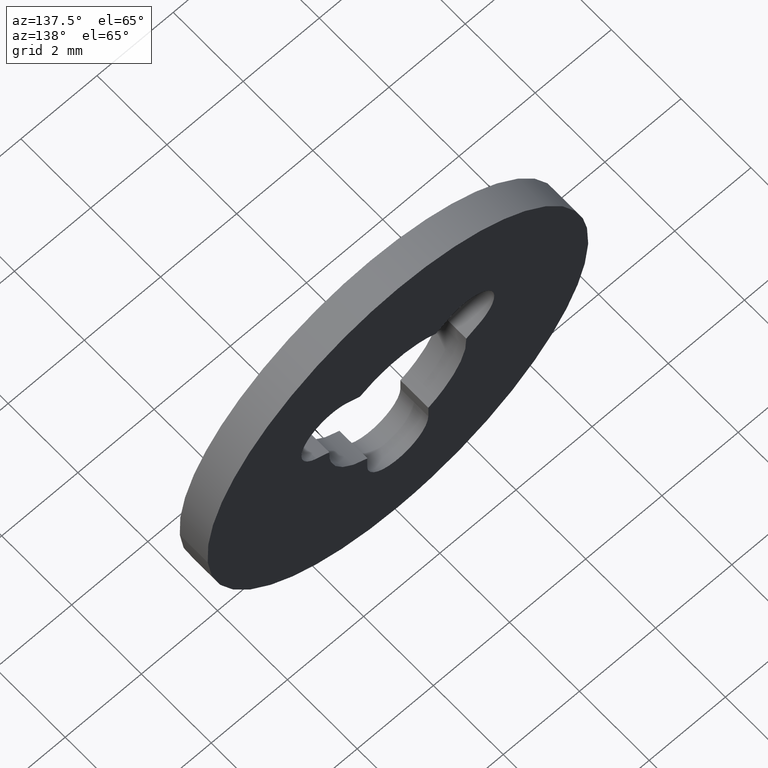
[diagram: clean part render]
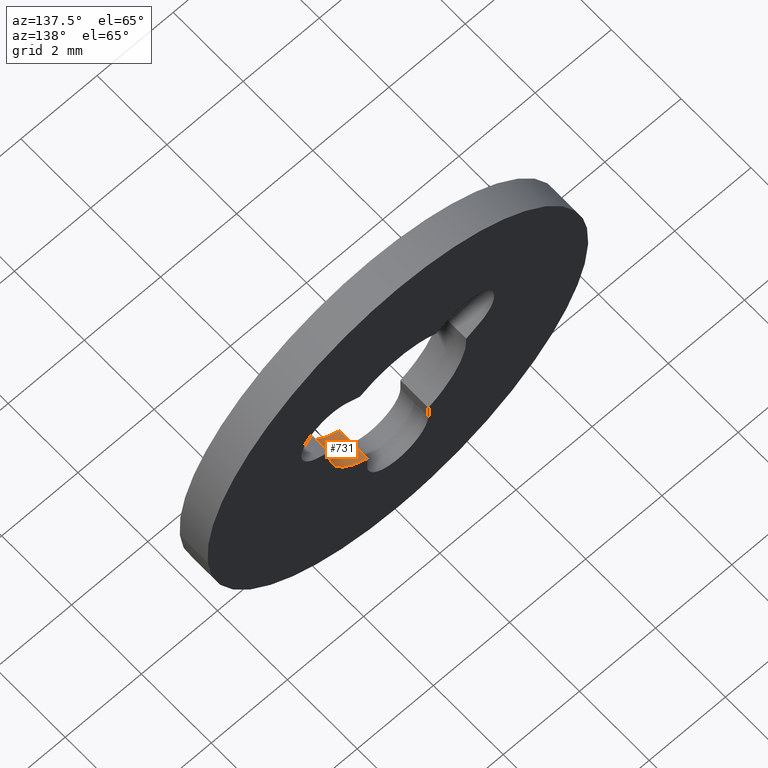
[diagram: same view with one face highlighted and labeled with its STEP entity id]
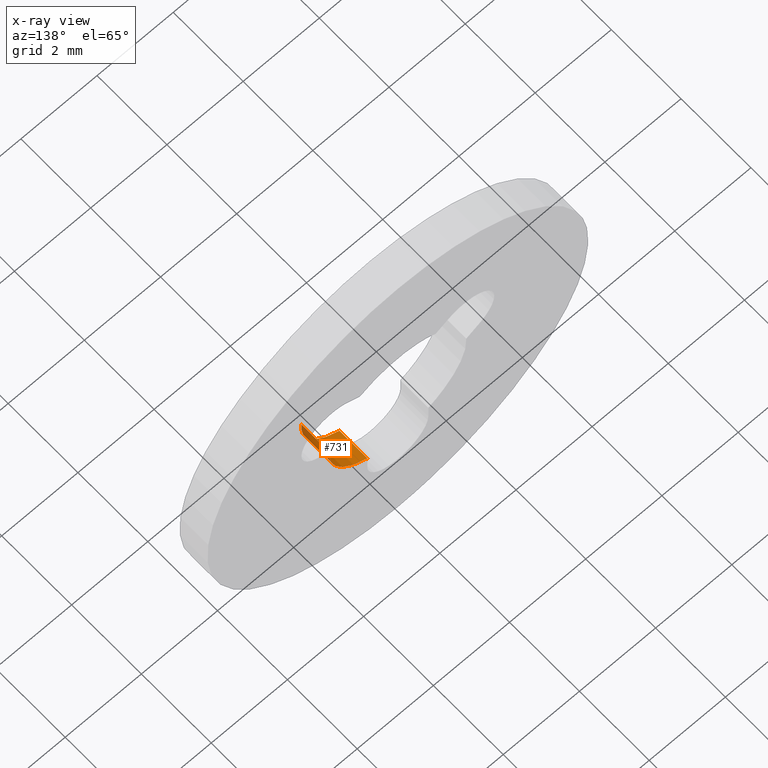
[diagram: x-ray of the same camera — body ghosted, the highlighted face saturated]
A machine part, auxiliary view. The second image highlights one B-rep face of the part: STEP entity #731.
The next image is the same camera in x-ray: the body ghosted, the highlighted face saturated — about 6% of this face is hidden behind the body in this view.
In plain terms, the highlighted face is a freeform B-spline surface patch.
Its self-contained STEP definition (entity closure, byte-faithful):
#656=CARTESIAN_POINT('',(1.796423492363695,0.0,0.113413562168851));
#657=VERTEX_POINT('',#656);
#664=CARTESIAN_POINT('',(1.796423492363695,0.800000000000023,0.113413562168851));
#665=VERTEX_POINT('',#664);
#671=CARTESIAN_POINT('',(1.796423492363695,0.800000000000023,0.113413562168851));
#672=CARTESIAN_POINT('',(1.796423492363695,0.0,0.113413562168851));
#673=QUASI_UNIFORM_CURVE('',1,(#671,#672),.UNSPECIFIED.,.F.,.U.);
#674=EDGE_CURVE('',#665,#657,#673,.T.);
#679=CARTESIAN_POINT('',(1.790504428084303,0.820000000000024,0.184645316784634));
#680=CARTESIAN_POINT('',(1.790504428084303,-0.020500000000001,0.184645316784634));
#681=CARTESIAN_POINT('',(1.926290685168417,0.820000000000024,-1.132073129238423));
#682=CARTESIAN_POINT('',(1.926290685168417,-0.020500000000001,-1.132073129238423));
#683=CARTESIAN_POINT('',(0.709876207944483,0.820000000000024,-1.654108753798963));
#684=CARTESIAN_POINT('',(0.709876207944483,-0.020500000000001,-1.654108753798963));
#692=(BOUNDED_SURFACE()B_SPLINE_SURFACE(1,2,((#679,#681,#683),(#680,#682,#684)),.UNSPECIFIED.,.F.,.F.,.U.)B_SPLINE_SURFACE_WITH_KNOTS((2,2),(3,3),(0.0,1.0),(0.0,2.362383615580360),.UNSPECIFIED.)GEOMETRIC_REPRESENTATION_ITEM()RATIONAL_B_SPLINE_SURFACE(((1.0,0.802530900684855,0.992359931178921),(1.0,0.802530900684855,0.992359931178921)))REPRESENTATION_ITEM('')SURFACE());
#693=CARTESIAN_POINT('',(0.800000000000012,0.0,-1.612451549659705));
#694=VERTEX_POINT('',#693);
#695=CARTESIAN_POINT('',(0.800000000000011,0.0,-1.612451549659704));
#696=CARTESIAN_POINT('',(1.871810466303460,0.0,-1.080684642788159));
#697=CARTESIAN_POINT('',(1.796423492363694,0.0,0.113413562168851));
#705=(BOUNDED_CURVE()B_SPLINE_CURVE(2,(#695,#696,#697),.UNSPECIFIED.,.F.,.U.)CURVE()GEOMETRIC_REPRESENTATION_ITEM()QUASI_UNIFORM_CURVE()RATIONAL_B_SPLINE_CURVE((1.0,0.832802138089652,1.0))REPRESENTATION_ITEM(''));
#706=EDGE_CURVE('',#694,#657,#705,.T.);
#707=ORIENTED_EDGE('',*,*,#706,.T.);
#708=ORIENTED_EDGE('',*,*,#674,.F.);
#709=CARTESIAN_POINT('',(0.800000000000012,0.800000000000023,-1.612451549659705));
#710=VERTEX_POINT('',#709);
#711=CARTESIAN_POINT('',(0.800000000000011,0.800000000000023,-1.612451549659704));
#712=CARTESIAN_POINT('',(1.871810466303460,0.800000000000023,-1.080684642788159));
#713=CARTESIAN_POINT('',(1.796423492363694,0.800000000000023,0.113413562168851));
#721=(BOUNDED_CURVE()B_SPLINE_CURVE(2,(#711,#712,#713),.UNSPECIFIED.,.F.,.U.)CURVE()GEOMETRIC_REPRESENTATION_ITEM()QUASI_UNIFORM_CURVE()RATIONAL_B_SPLINE_CURVE((1.0,0.832802138089652,1.0))REPRESENTATION_ITEM(''));
#722=EDGE_CURVE('',#710,#665,#721,.T.);
#723=ORIENTED_EDGE('',*,*,#722,.F.);
#724=CARTESIAN_POINT('',(0.800000000000012,0.800000000000023,-1.612451549659705));
#725=CARTESIAN_POINT('',(0.800000000000012,0.0,-1.612451549659705));
#726=QUASI_UNIFORM_CURVE('',1,(#724,#725),.UNSPECIFIED.,.F.,.U.);
#727=EDGE_CURVE('',#710,#694,#726,.T.);
#728=ORIENTED_EDGE('',*,*,#727,.T.);
#729=EDGE_LOOP('',(#707,#708,#723,#728));
#730=FACE_OUTER_BOUND('',#729,.T.);
#731=ADVANCED_FACE('',(#730),#692,.F.);